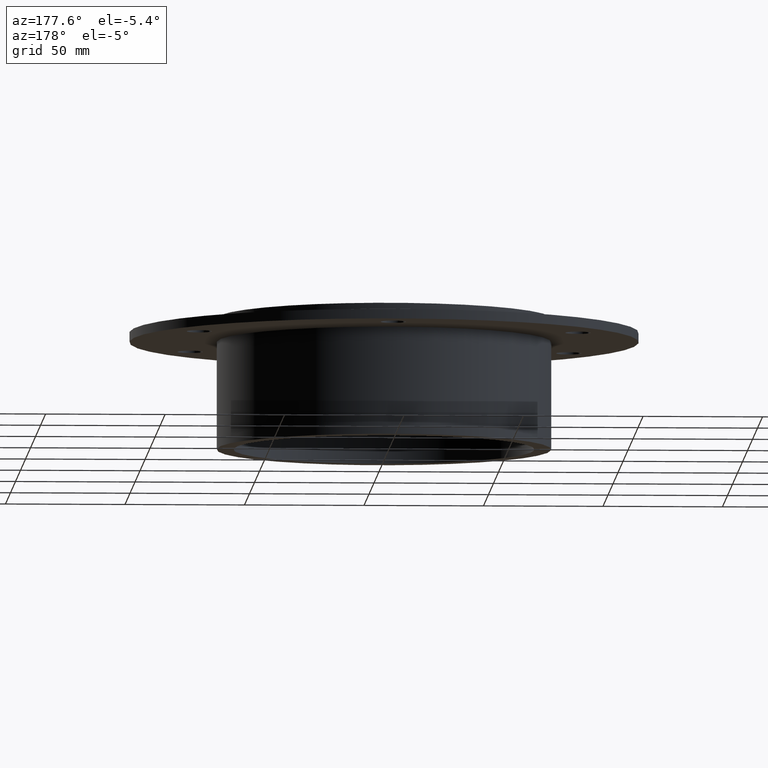
[diagram: clean part render]
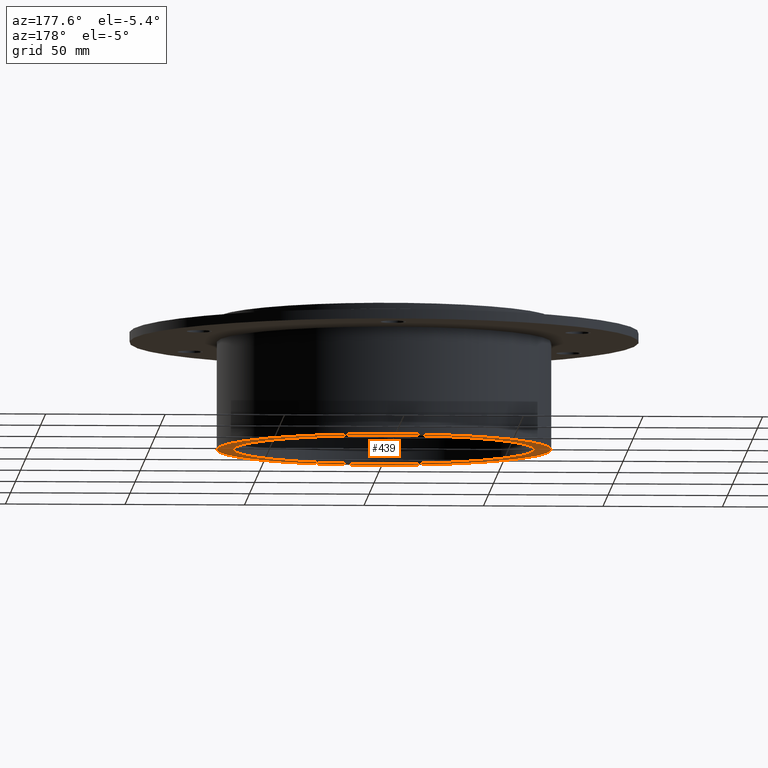
[diagram: same view with one face highlighted and labeled with its STEP entity id]
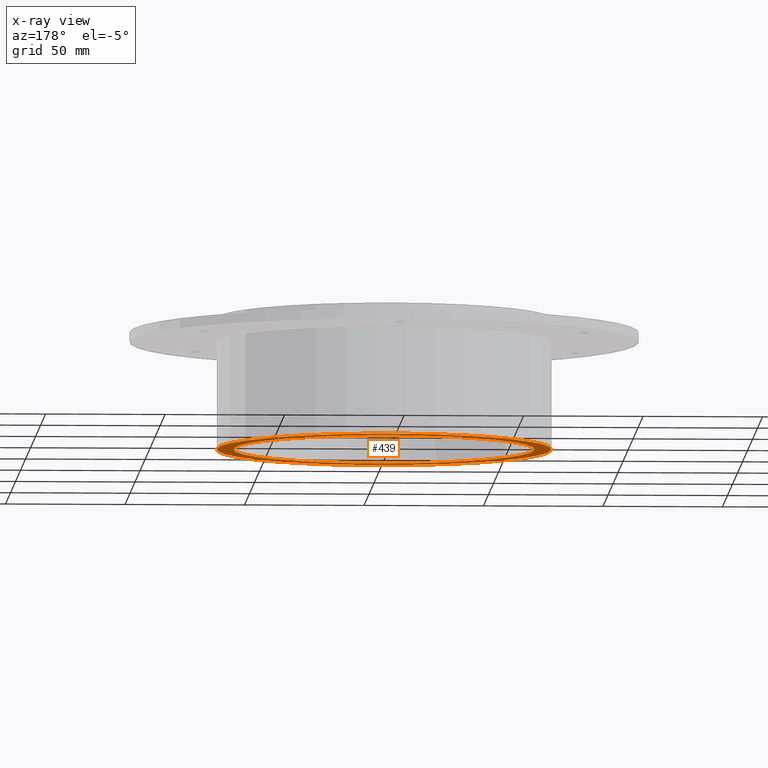
[diagram: x-ray of the same camera — body ghosted, the highlighted face saturated]
A machine part, auxiliary view. The second image highlights one B-rep face of the part: STEP entity #439.
The next image is the same camera in x-ray: the body ghosted, the highlighted face saturated — about 0% of this face is hidden behind the body in this view.
In plain terms, the highlighted planar face has unit normal (0, 0, 1).
Its self-contained STEP definition (entity closure, byte-faithful):
#385=CARTESIAN_POINT('',(-63.000000000000028,-7.715275E-015,-55.0));
#386=VERTEX_POINT('',#385);
#387=CARTESIAN_POINT('',(0.0,0.0,-55.0));
#388=DIRECTION('',(0.0,0.0,1.0));
#389=DIRECTION('',(1.0,0.0,0.0));
#390=AXIS2_PLACEMENT_3D('',#387,#388,#389);
#391=CIRCLE('',#390,63.000000000000028);
#392=EDGE_CURVE('',#386,#386,#391,.T.);
#416=CARTESIAN_POINT('',(70.0,8.572528E-015,-55.0));
#417=VERTEX_POINT('',#416);
#418=CARTESIAN_POINT('',(0.0,0.0,-55.0));
#419=DIRECTION('',(0.0,0.0,-1.0));
#420=DIRECTION('',(-1.0,0.0,0.0));
#421=AXIS2_PLACEMENT_3D('',#418,#419,#420);
#422=CIRCLE('',#421,70.0);
#423=EDGE_CURVE('',#417,#417,#422,.T.);
#428=CARTESIAN_POINT('',(-4.097914E-015,-1.691768E-015,-55.0));
#429=DIRECTION('',(0.0,0.0,1.0));
#430=DIRECTION('',(1.0,0.0,0.0));
#431=AXIS2_PLACEMENT_3D('',#428,#429,#430);
#432=PLANE('',#431);
#433=ORIENTED_EDGE('',*,*,#423,.T.);
#434=EDGE_LOOP('',(#433));
#435=FACE_OUTER_BOUND('',#434,.T.);
#436=ORIENTED_EDGE('',*,*,#392,.T.);
#437=EDGE_LOOP('',(#436));
#438=FACE_BOUND('',#437,.T.);
#439=ADVANCED_FACE('',(#435,#438),#432,.F.);